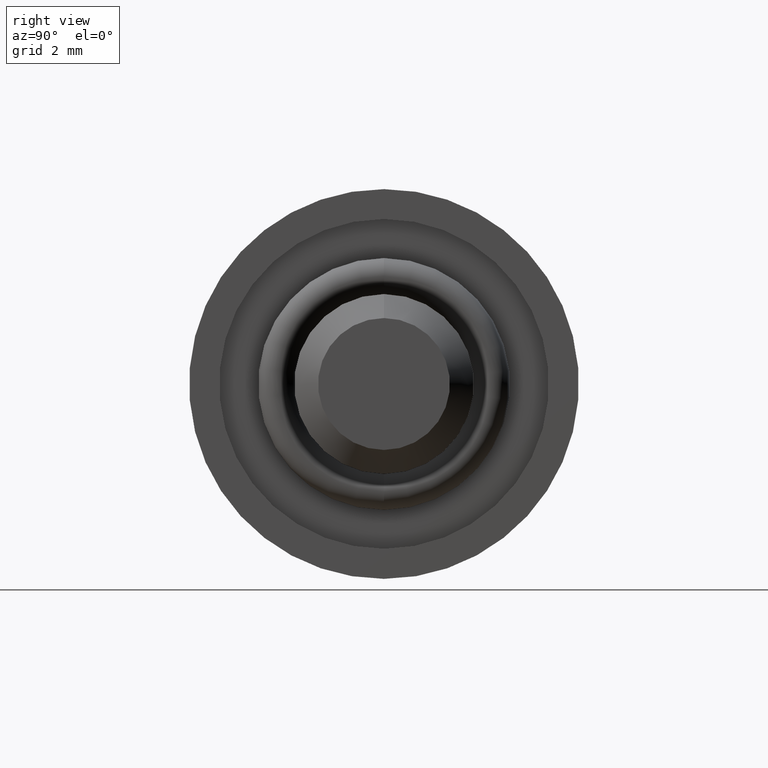
[diagram: clean part render]
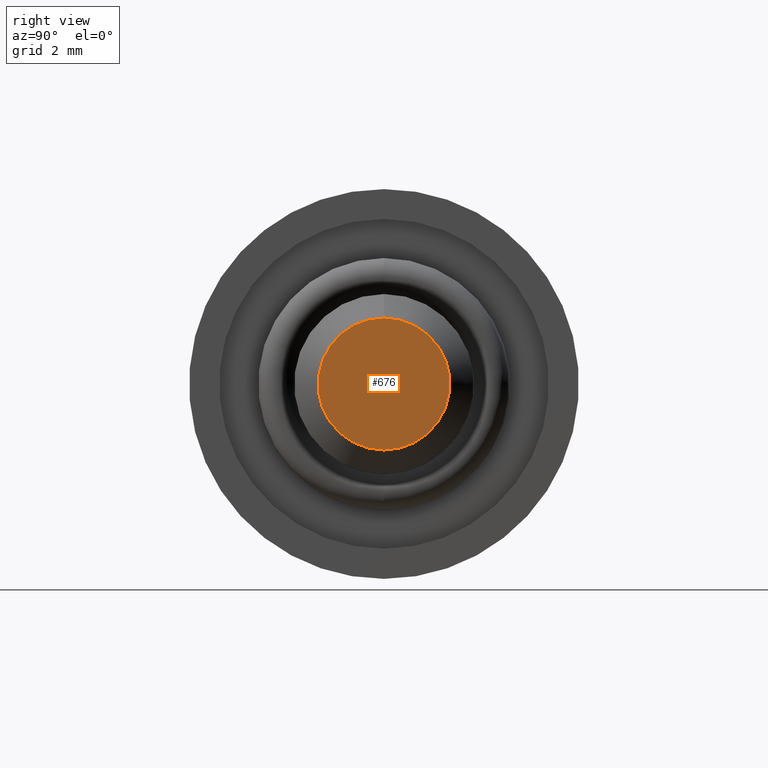
[diagram: same view with one face highlighted and labeled with its STEP entity id]
A machine part, right view. The second image highlights one B-rep face of the part: STEP entity #676.
In plain terms, the highlighted planar face has unit normal (1, 0, 0).
Its self-contained STEP definition (entity closure, byte-faithful):
#1 = VERTEX_POINT ( 'NONE', #870 ) ;
#33 = AXIS2_PLACEMENT_3D ( 'NONE', #656, #922, #42 ) ;
#42 = DIRECTION ( 'NONE',  ( 0.0000000000000000000, 0.0000000000000000000, -1.000000000000000000 ) ) ;
#108 = DIRECTION ( 'NONE',  ( 0.0000000000000000000, 0.0000000000000000000, -1.000000000000000000 ) ) ;
#141 = EDGE_CURVE ( 'NONE', #1, #449, #711, .T. ) ;
#166 = CARTESIAN_POINT ( 'NONE',  ( 6.000000000000000000, 0.0000000000000000000, 0.0000000000000000000 ) ) ;
#217 = CARTESIAN_POINT ( 'NONE',  ( 6.000000000000000000, 1.592040838891560300E-016, -1.100000000000002100 ) ) ;
#295 = CARTESIAN_POINT ( 'NONE',  ( 6.000000000000000000, 0.0000000000000000000, 0.0000000000000000000 ) ) ;
#449 = VERTEX_POINT ( 'NONE', #217 ) ;
#488 = EDGE_LOOP ( 'NONE', ( #500, #1141 ) ) ;
#500 = ORIENTED_EDGE ( 'NONE', *, *, #141, .T. ) ;
#546 = DIRECTION ( 'NONE',  ( 1.000000000000000000, 0.0000000000000000000, 0.0000000000000000000 ) ) ;
#583 = DIRECTION ( 'NONE',  ( 1.000000000000000000, 0.0000000000000000000, 0.0000000000000000000 ) ) ;
#627 = AXIS2_PLACEMENT_3D ( 'NONE', #295, #583, #659 ) ;
#656 = CARTESIAN_POINT ( 'NONE',  ( 6.000000000000000000, 0.0000000000000000000, 0.0000000000000000000 ) ) ;
#658 = EDGE_CURVE ( 'NONE', #449, #1, #961, .T. ) ;
#659 = DIRECTION ( 'NONE',  ( 0.0000000000000000000, 0.0000000000000000000, -1.000000000000000000 ) ) ;
#676 = ADVANCED_FACE ( 'NONE', ( #709 ), #1172, .T. ) ;
#709 = FACE_OUTER_BOUND ( 'NONE', #488, .T. ) ;
#711 = CIRCLE ( 'NONE', #1061, 1.100000000000002100 ) ;
#870 = CARTESIAN_POINT ( 'NONE',  ( 6.000000000000000000, 0.0000000000000000000, 1.100000000000002100 ) ) ;
#922 = DIRECTION ( 'NONE',  ( 1.000000000000000000, 0.0000000000000000000, 0.0000000000000000000 ) ) ;
#961 = CIRCLE ( 'NONE', #627, 1.100000000000002100 ) ;
#1061 = AXIS2_PLACEMENT_3D ( 'NONE', #166, #546, #108 ) ;
#1141 = ORIENTED_EDGE ( 'NONE', *, *, #658, .T. ) ;
#1172 = PLANE ( 'NONE',  #33 ) ;